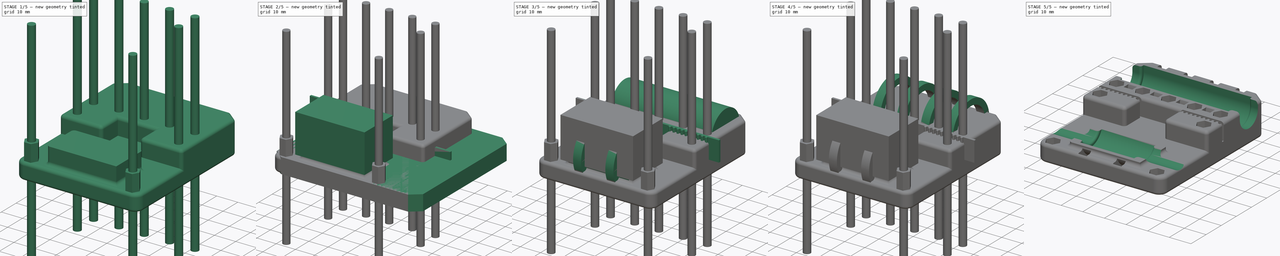
[diagram: build sequence overview — one tinted view per stage of 5, left to right]
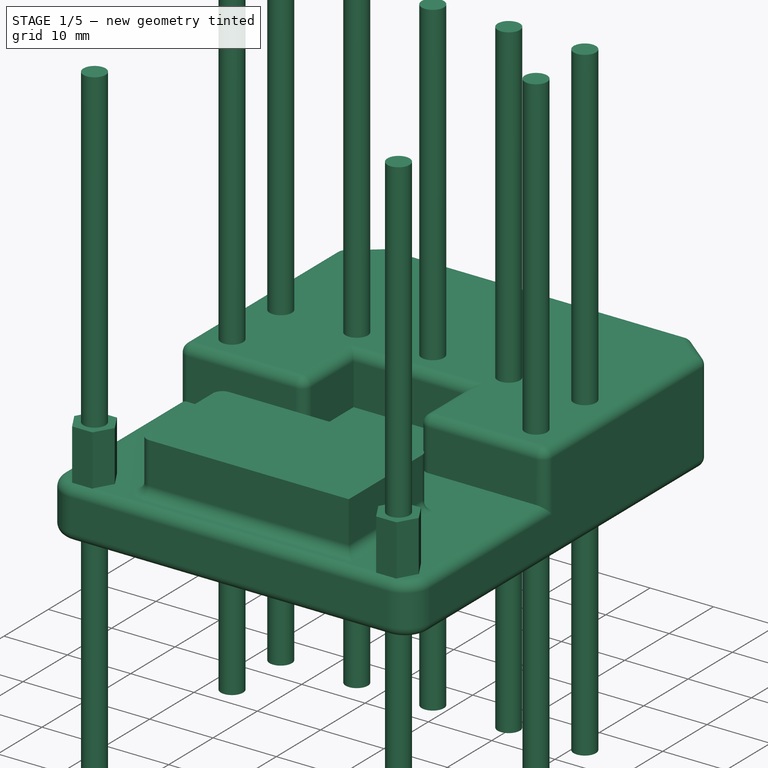
[diagram: stage 1 of 5 — iso view after this stage's code; geometry added in this stage tinted green]
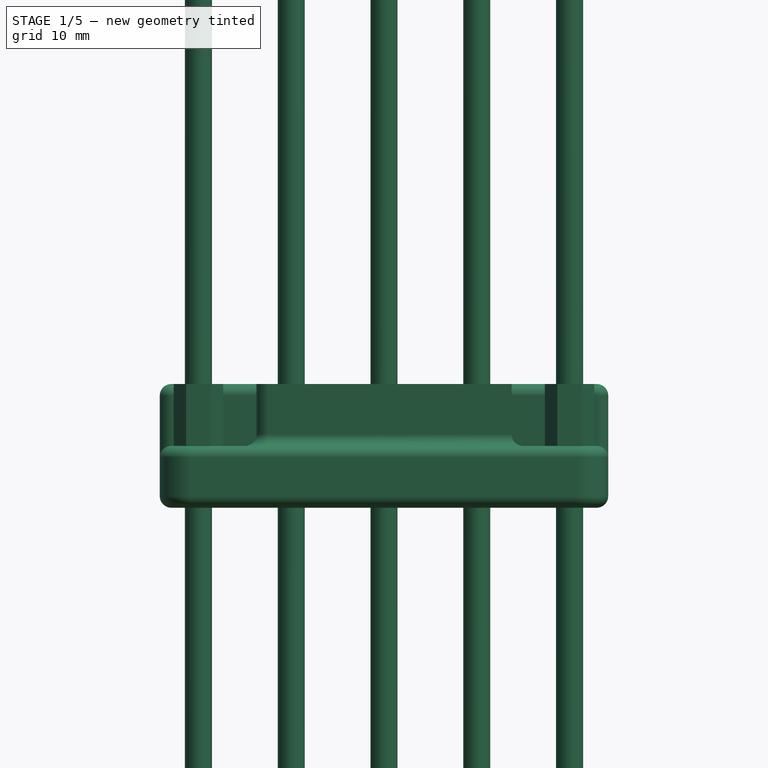
[diagram: stage 1 of 5 — front view after this stage's code; geometry added in this stage tinted green]
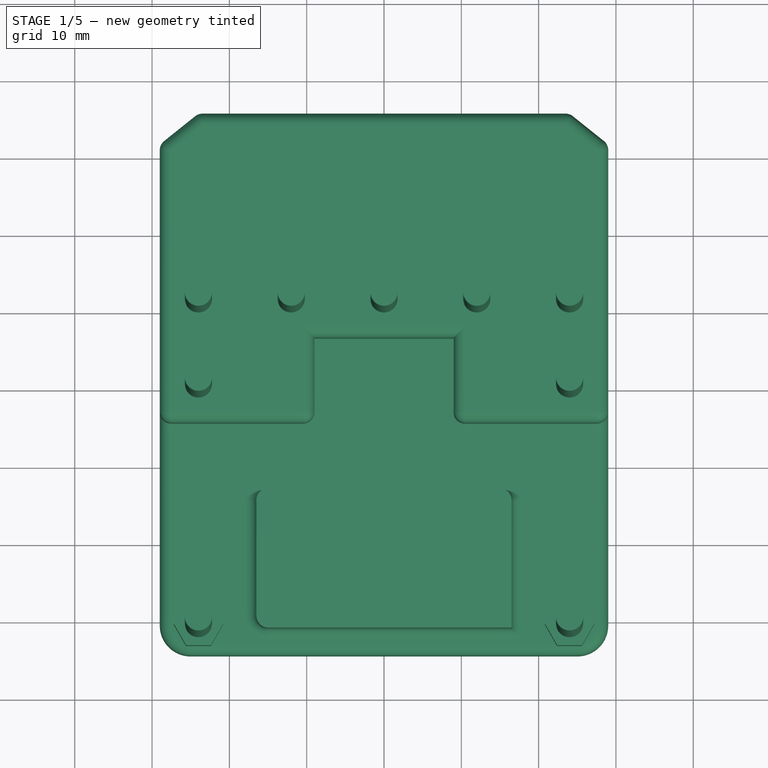
[diagram: stage 1 of 5 — top view after this stage's code; geometry added in this stage tinted green]
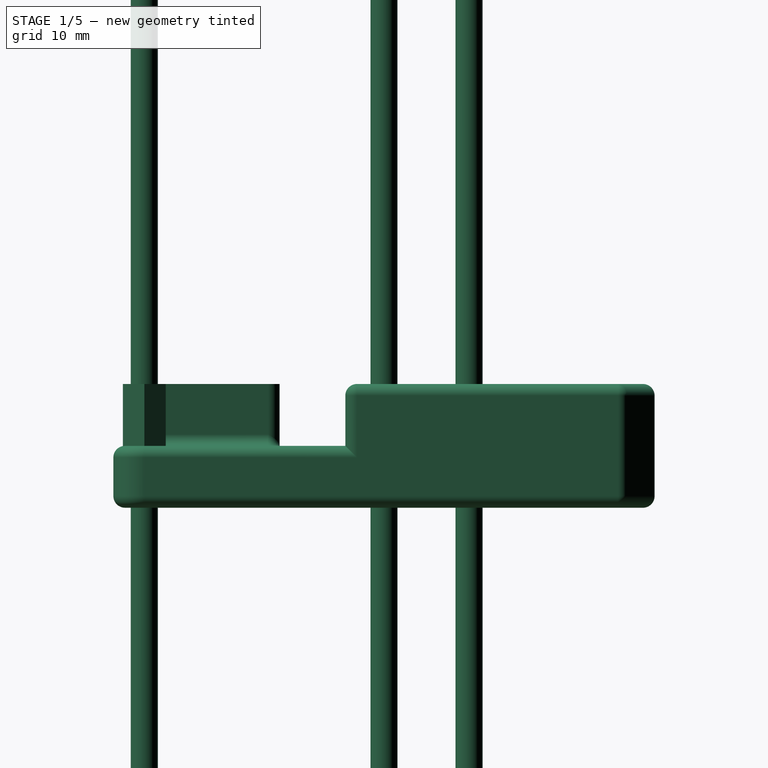
[diagram: stage 1 of 5 — right view after this stage's code; geometry added in this stage tinted green]
FCSTD DOCUMENT  (FreeCAD 0.16R6707 (Git))
Label: carroX_Lale
License: CC-BY 3.0
LicenseURL: http://creativecommons.org/licenses/by/3.0/
objects: Sketcher::SketchObject×9, PartDesign::Pad×9, Part::Cylinder×8, Part::MultiFuse×7, Part::Box×3, Part::Cut×2, Part::FeaturePython×2, PartDesign::Fillet×2
note: 51 computed .brp shape members not serialized (recipe doc carries the construction recipe); baked Part::Feature solids carry a one-line shape summary decoded from their .brp

FEATURE [Sketcher::SketchObject] Sketch
  sketch-geometry (8):
    g0: LineSegment StartX=-24 StartY=35 StartZ=0 EndX=24 EndY=35 EndZ=0
    g1: LineSegment StartX=24 StartY=35 StartZ=0 EndX=29 EndY=31 EndZ=0
    g2: LineSegment StartX=29 StartY=31 StartZ=0 EndX=29 EndY=-31 EndZ=0
    g3: LineSegment StartX=29 StartY=-31 StartZ=0 EndX=24 EndY=-35 EndZ=0
    g4: LineSegment StartX=24 StartY=-35 StartZ=0 EndX=-24 EndY=-35 EndZ=0
    g5: LineSegment StartX=-24 StartY=-35 StartZ=0 EndX=-29 EndY=-31 EndZ=0
    g6: LineSegment StartX=-29 StartY=-31 StartZ=0 EndX=-29 EndY=31 EndZ=0
    g7: LineSegment StartX=-29 StartY=31 StartZ=0 EndX=-24 EndY=35 EndZ=0
  constraints (22):
    c: Coincident(g0,g1)
    c: Coincident(g1,g2)
    c: Vertical(g2)
    c: Coincident(g2,g3)
    c: Coincident(g3,g4)
    c: Horizontal(g4)
    c: Coincident(g4,g5)
    c: Coincident(g5,g6)
    c: Vertical(g6)
    c: Coincident(g6,g7)
    c: Coincident(g7,g0)
    c: Symmetric(g0,g0,g-2)
    c: Symmetric(g5,g2,g-2)
    c: Symmetric(g3,g4,g-2)
    c: Parallel(g3,g7)
    c: Parallel(g5,g1)
    c: DistanceY(g3,g0) = 70
    c: DistanceX(g2,g5) = -58
    c: DistanceX(g0) = 48
    c: Equal(g4,g0)
    c: DistanceY(g6) = 62
    c: Symmetric(g0,g4,g-1)
FEATURE [PartDesign::Pad] Pad
  Length = 8
  Length2 = 100
  Sketch = -> Sketch
  Type = 0
FEATURE [PartDesign::Pad] Pad005  label="tornillos001"
  Length = 100
  Length2 = 100
  Midplane = true
  Placement = pos=(0,0,16) rot=(0,0,1;0rad)
  Sketch = -> Sketch005
  Type = 0
FEATURE [PartDesign::Pad] Pad006  label="tuercas001"
  Length = 11
  Length2 = 100
  Placement = pos=(0,0,16) rot=(0,0,1;0rad)
  Reversed = true
  Sketch = -> Sketch008
  Type = 0
FEATURE [PartDesign::Pad] Pad007  label="huecos_traseros001"
  Length = 3
  Length2 = 100
  Placement = pos=(0,0,0) rot=(1,0,0;3.14159rad)
  Reversed = true
  Sketch = -> Sketch006
  Type = 0
FEATURE [PartDesign::Pad] Pad008  label="principal"
  Length = 8
  Length2 = 100
  Sketch = -> Sketch001
  Type = 0
FEATURE [Sketcher::SketchObject] Sketch009
  ExternalGeometry = -> [Pad008]
  Placement = pos=(0,0,0) rot=(1,0,0;3.14159rad)
  Support = -> Pad008 [Face3]
  sketch-geometry (8):
    g0: LineSegment StartX=-24 StartY=35 StartZ=0 EndX=-25 EndY=35 EndZ=0
    g1: LineSegment StartX=24 StartY=35 StartZ=0 EndX=25 EndY=35 EndZ=0
    g2: ArcOfCircle CenterX=-25 CenterY=31 CenterZ=0 NormalX=0 NormalY=0 NormalZ=1 Radius=3.99999 StartAngle=1.5708 EndAngle=3.1416
    g3: ArcOfCircle CenterX=25 CenterY=31 CenterZ=0 NormalX=0 NormalY=0 NormalZ=1 Radius=4.00003 StartAngle=6.64384e-06 EndAngle=1.5708
    g4: LineSegment StartX=-24 StartY=35 StartZ=0 EndX=-25 EndY=31 EndZ=0
    g5: LineSegment StartX=-25 StartY=31 StartZ=0 EndX=-29 EndY=31 EndZ=0
    g6: LineSegment StartX=24 StartY=35 StartZ=0 EndX=25 EndY=31 EndZ=0
    g7: LineSegment StartX=25 StartY=31 StartZ=0 EndX=29 EndY=31 EndZ=0
  constraints (20):
    c: Coincident(g0,g-3)
    c: Horizontal(g0)
    c: Coincident(g1,g-3)
    c: Horizontal(g1)
    c: Coincident(g2,g-5)
    c: Coincident(g2,g0)
    c: Coincident(g3,g-4)
    c: Coincident(g3,g1)
    c: Tangent(g3,g-4)
    c: Tangent(g3,g1)
    c: Tangent(g2,g-5)
    c: Tangent(g0,g2)
    c: Coincident(g0,g4)
    c: Coincident(g4,g2)
    c: Coincident(g4,g5)
    c: Coincident(g5,g2)
    c: Coincident(g1,g6)
    c: Coincident(g6,g7)
    c: Coincident(g7,g3)
    c: Coincident(g6,g3)
FEATURE [PartDesign::Pad] Pad009
  Length = 8
  Length2 = 100
  Reversed = true
  Sketch = -> Sketch009
  Type = 0
FEATURE [PartDesign::Fillet] Fillet
  Base = -> Pad009 [Edge46,Edge48,Edge52,Edge28,Edge42,Edge7,Edge1,Edge3,Edge9,Edge10,Edge11,Edge12,Edge13,Edge14,Edge15,Edge16,Edge17,Edge6,Edge8,Edge23,Edge21,Edge22,Edge41,Edge35,Edge37,Edge24,Edge36,Edge32,Edge31,Edge4,Edge30,Edge34,Edge39,Edge38,Edge54,Edge44,Edge45]
  Radius = 1.5
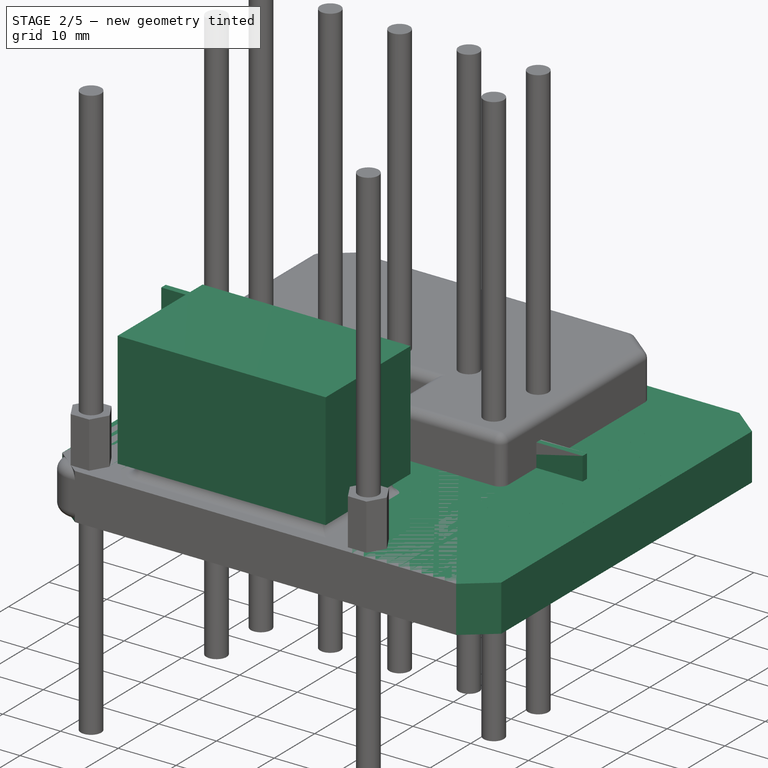
[diagram: stage 2 of 5 — iso view after this stage's code; geometry added in this stage tinted green]
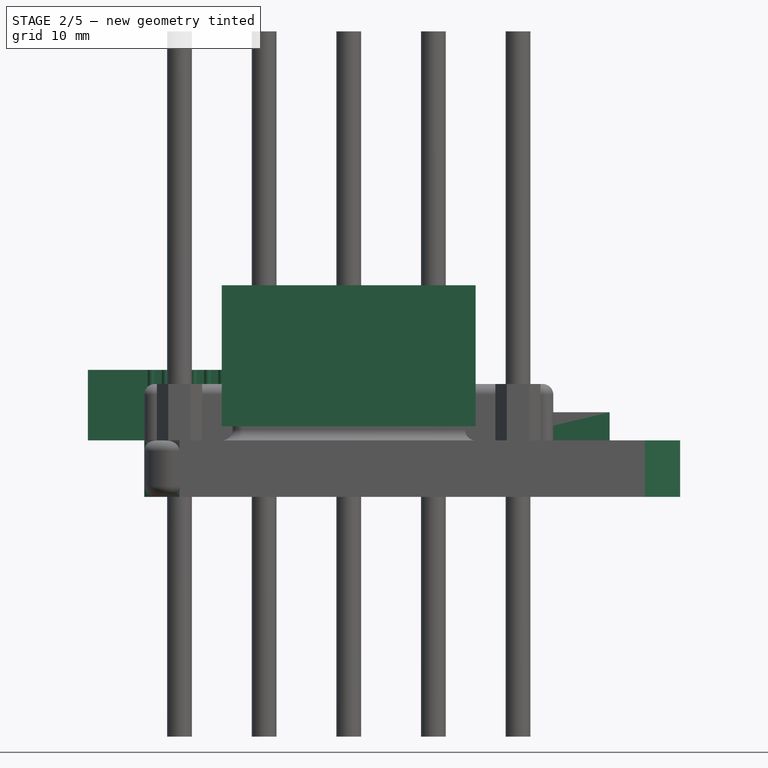
[diagram: stage 2 of 5 — front view after this stage's code; geometry added in this stage tinted green]
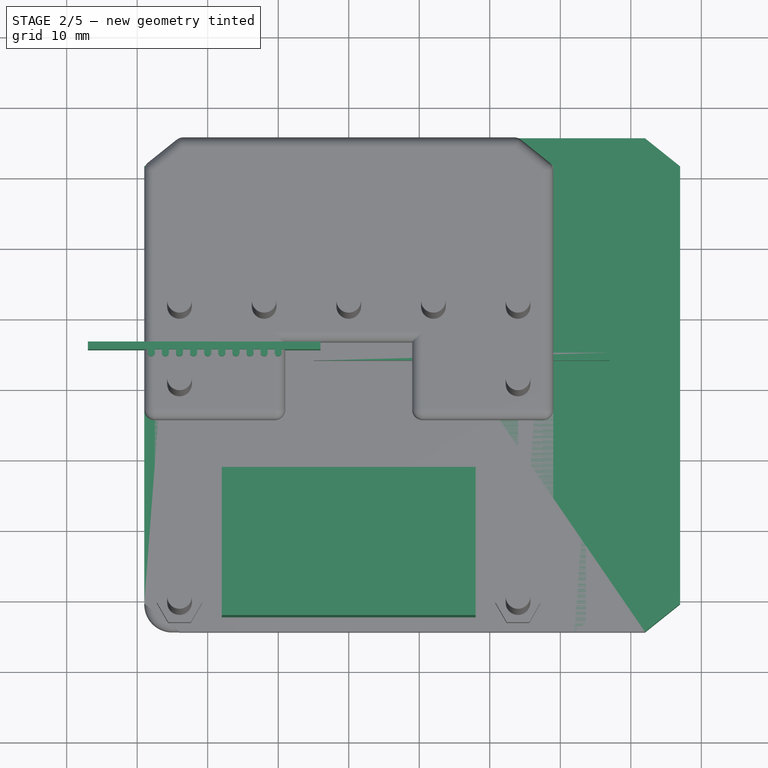
[diagram: stage 2 of 5 — top view after this stage's code; geometry added in this stage tinted green]
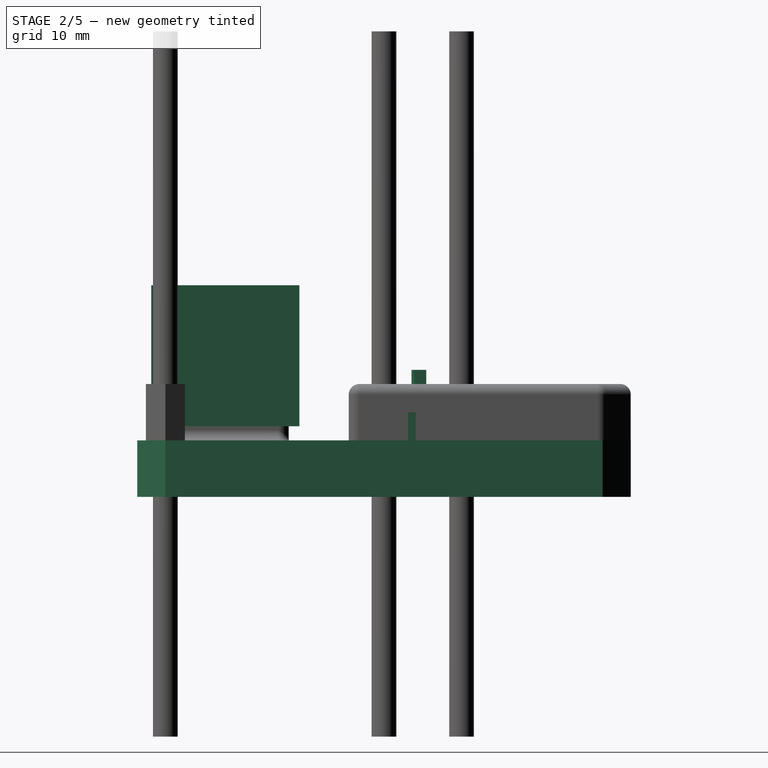
[diagram: stage 2 of 5 — right view after this stage's code; geometry added in this stage tinted green]
FEATURE [Sketcher::SketchObject] Sketch005  label="tornillos"
  Placement = pos=(0,0,16) rot=(0,0,1;0rad)
  sketch-geometry (9):
    g0: Circle CenterX=12 CenterY=11 CenterZ=0 NormalX=0 NormalY=0 NormalZ=1 Radius=1.75
    g1: Circle CenterX=-12 CenterY=11 CenterZ=0 NormalX=0 NormalY=0 NormalZ=1 Radius=1.75
    g2: Circle CenterX=-24 CenterY=-31 CenterZ=0 NormalX=0 NormalY=0 NormalZ=1 Radius=1.75
    g3: Circle CenterX=24 CenterY=-31 CenterZ=0 NormalX=0 NormalY=0 NormalZ=1 Radius=1.75
    g4: Circle CenterX=-24 CenterY=0 CenterZ=0 NormalX=0 NormalY=0 NormalZ=1 Radius=1.75
    g5: Circle CenterX=24 CenterY=0 CenterZ=0 NormalX=0 NormalY=0 NormalZ=1 Radius=1.75
    g6: Circle CenterX=0 CenterY=11 CenterZ=0 NormalX=0 NormalY=0 NormalZ=1 Radius=1.75
    g7: Circle CenterX=-24 CenterY=11 CenterZ=0 NormalX=0 NormalY=0 NormalZ=1 Radius=1.75
    g8: Circle CenterX=24 CenterY=11 CenterZ=0 NormalX=0 NormalY=0 NormalZ=1 Radius=1.75
  constraints (23):
    c: DistanceX(g1,g0) = 24
    c: Symmetric(g1,g0,g-2)
    c: DistanceY(g-1,g1) = 11
    c: Radius(g1) = 1.75
    c: Equal(g1,g0)
    c: Equal(g0,g5)
    c: Equal(g5,g3)
    c: Equal(g3,g2)
    c: Equal(g2,g4)
    c: Symmetric(g4,g5,g-2)
    c: Symmetric(g2,g3,g-2)
    c: DistanceX(g4,g5) = 48
    c: DistanceX(g2,g3) = 48
    c: DistanceY(g-1,g2) = -31
    c: DistanceY(g-1,g4) = 0
    c: PointOnObject(g6,g-2)
    c: DistanceY(g-1,g6) = 11
    c: Symmetric(g7,g8,g-2)
    c: Equal(g7,g1)
    c: Equal(g1,g6)
    c: Equal(g6,g8)
    c: DistanceX(g7,g6) = 24
    c: DistanceY(g-1,g7) = 11
FEATURE [Sketcher::SketchObject] Sketch006  label="huecos_traseros"
  Placement = pos=(0,0,0) rot=(1,0,0;3.14159rad)
  sketch-geometry (24):
    g0: LineSegment StartX=-10 StartY=27 StartZ=0 EndX=-6 EndY=27 EndZ=0
    g1: LineSegment StartX=-6 StartY=27 StartZ=0 EndX=-6 EndY=18 EndZ=0
    g2: LineSegment StartX=-6 StartY=18 StartZ=0 EndX=-10 EndY=18 EndZ=0
    g3: LineSegment StartX=-10 StartY=18 StartZ=0 EndX=-10 EndY=27 EndZ=0
    g4: LineSegment StartX=6 StartY=27 StartZ=0 EndX=10 EndY=27 EndZ=0
    g5: LineSegment StartX=10 StartY=27 StartZ=0 EndX=10 EndY=18 EndZ=0
    g6: LineSegment StartX=10 StartY=18 StartZ=0 EndX=6 EndY=18 EndZ=0
    g7: LineSegment StartX=6 StartY=18 StartZ=0 EndX=6 EndY=27 EndZ=0
    g8: LineSegment StartX=-20 StartY=-18 StartZ=0 EndX=-16 EndY=-18 EndZ=0
    g9: LineSegment StartX=-16 StartY=-18 StartZ=0 EndX=-16 EndY=-27 EndZ=0
    g10: LineSegment StartX=-16 StartY=-27 StartZ=0 EndX=-20 EndY=-27 EndZ=0
    g11: LineSegment StartX=-20 StartY=-27 StartZ=0 EndX=-20 EndY=-18 EndZ=0
    g12: LineSegment StartX=-8 StartY=-18 StartZ=0 EndX=-4 EndY=-18 EndZ=0
    g13: LineSegment StartX=-4 StartY=-18 StartZ=0 EndX=-4 EndY=-27 EndZ=0
    g14: LineSegment StartX=-4 StartY=-27 StartZ=0 EndX=-8 EndY=-27 EndZ=0
    g15: LineSegment StartX=-8 StartY=-27 StartZ=0 EndX=-8 EndY=-18 EndZ=0
    g16: LineSegment StartX=4 StartY=-18 StartZ=0 EndX=8 EndY=-18 EndZ=0
    g17: LineSegment StartX=8 StartY=-18 StartZ=0 EndX=8 EndY=-27 EndZ=0
    g18: LineSegment StartX=8 StartY=-27 StartZ=0 EndX=4 EndY=-27 EndZ=0
    g19: LineSegment StartX=4 StartY=-27 StartZ=0 EndX=4 EndY=-18 EndZ=0
    g20: LineSegment StartX=16 StartY=-18 StartZ=0 EndX=20 EndY=-18 EndZ=0
    g21: LineSegment StartX=20 StartY=-18 StartZ=0 EndX=20 EndY=-27 EndZ=0
    g22: LineSegment StartX=20 StartY=-27 StartZ=0 EndX=16 EndY=-27 EndZ=0
    g23: LineSegment StartX=16 StartY=-27 StartZ=0 EndX=16 EndY=-18 EndZ=0
  constraints (69):
    c: Coincident(g0,g1)
    c: Coincident(g1,g2)
    c: Coincident(g2,g3)
    c: Coincident(g3,g0)
    c: Horizontal(g0)
    c: Horizontal(g2)
    c: Vertical(g1)
    c: Vertical(g3)
    c: DistanceY(g1) = -9
    c: Coincident(g4,g5)
    c: Coincident(g5,g6)
    c: Coincident(g6,g7)
    c: Coincident(g7,g4)
    c: Horizontal(g4)
    c: Horizontal(g6)
    c: Vertical(g5)
    c: Vertical(g7)
    c: Coincident(g8,g9)
    c: Coincident(g9,g10)
    c: Coincident(g10,g11)
    c: Coincident(g11,g8)
    c: Horizontal(g8)
    c: Horizontal(g10)
    c: Vertical(g9)
    c: Vertical(g11)
    c: Coincident(g12,g13)
    c: Coincident(g13,g14)
    c: Coincident(g14,g15)
    c: Coincident(g15,g12)
    c: Horizontal(g12)
    c: Horizontal(g14)
    c: Vertical(g13)
    c: Vertical(g15)
    c: Coincident(g16,g17)
    c: Coincident(g17,g18)
    c: Coincident(g18,g19)
    c: Coincident(g19,g16)
    c: Horizontal(g16)
    c: Horizontal(g18)
    c: Vertical(g17)
    c: Vertical(g19)
    c: Coincident(g20,g21)
    c: Coincident(g21,g22)
    c: Coincident(g22,g23)
    c: Coincident(g23,g20)
    c: Horizontal(g20)
    c: Horizontal(g22)
    c: Vertical(g21)
    c: Vertical(g23)
    c: DistanceX(g0) = 4
    c: Symmetric(g0,g4,g-2)
    c: DistanceX(g0,g4) = 12
    c: Equal(g0,g4)
    c: Equal(g4,g8)
    c: Equal(g8,g12)
    c: Equal(g12,g16)
    c: Equal(g16,g20)
    c: Equal(g1,g5)
    c: Equal(g5,g9)
    c: Equal(g9,g13)
    c: Equal(g13,g17)
    c: Equal(g17,g21)
    c: DistanceY(g-1,g1) = 18
    c: Symmetric(g8,g20,g-2)
    c: Symmetric(g14,g17,g-2)
    c: DistanceX(g8,g20) = 32
    c: DistanceX(g12,g16) = 8
    c: DistanceY(g-1,g8) = -18
    c: DistanceY(g-1,g16) = -18
FEATURE [Sketcher::SketchObject] Sketch008  label="tuercas"
  Placement = pos=(0,0,16) rot=(0,0,1;0rad)
  sketch-geometry (63):
    g0: Circle [constr] CenterX=-12 CenterY=11 CenterZ=0 NormalX=0 NormalY=0 NormalZ=1 Radius=3.2
    g1: Circle [constr] CenterX=12 CenterY=11 CenterZ=0 NormalX=0 NormalY=0 NormalZ=1 Radius=3.2
    g2: LineSegment StartX=-13.6492 StartY=13.7423 StartZ=0 EndX=-10.4498 EndY=13.7994 EndZ=0
    g3: LineSegment StartX=-10.4498 StartY=13.7994 StartZ=0 EndX=-8.80051 EndY=11.0572 EndZ=0
    g4: LineSegment StartX=-8.80051 StartY=11.0572 StartZ=0 EndX=-10.3508 EndY=8.25774 EndZ=0
    g5: LineSegment StartX=-10.3508 StartY=8.25774 StartZ=0 EndX=-13.5502 EndY=8.20058 EndZ=0
    g6: LineSegment StartX=-13.5502 StartY=8.20058 StartZ=0 EndX=-15.1995 EndY=10.9428 EndZ=0
    g7: LineSegment StartX=-15.1995 StartY=10.9428 StartZ=0 EndX=-13.6492 EndY=13.7423 EndZ=0
    g8: LineSegment StartX=10.4 StartY=13.7713 StartZ=0 EndX=13.6 EndY=13.7713 EndZ=0
    g9: LineSegment StartX=13.6 StartY=13.7713 StartZ=0 EndX=15.2 EndY=11 EndZ=0
    g10: LineSegment StartX=15.2 StartY=11 StartZ=0 EndX=13.6 EndY=8.22872 EndZ=0
    g11: LineSegment StartX=13.6 StartY=8.22872 StartZ=0 EndX=10.4 EndY=8.22872 EndZ=0
    g12: LineSegment StartX=10.4 StartY=8.22872 StartZ=0 EndX=8.8 EndY=11 EndZ=0
    g13: LineSegment StartX=8.8 StartY=11 StartZ=0 EndX=10.4 EndY=13.7713 EndZ=0
    g14: Circle [constr] CenterX=-24 CenterY=0 CenterZ=0 NormalX=0 NormalY=0 NormalZ=1 Radius=3.2
    g15: Circle [constr] CenterX=24 CenterY=0 CenterZ=0 NormalX=0 NormalY=0 NormalZ=1 Radius=3.2
    g16: LineSegment StartX=-25.6 StartY=2.77128 StartZ=0 EndX=-22.4 EndY=2.77128 EndZ=0
    g17: LineSegment StartX=-22.4 StartY=2.77128 StartZ=0 EndX=-20.8 EndY=0 EndZ=0
    g18: LineSegment StartX=-20.8 StartY=0 StartZ=0 EndX=-22.4 EndY=-2.77128 EndZ=0
    g19: LineSegment StartX=-22.4 StartY=-2.77128 StartZ=0 EndX=-25.6 EndY=-2.77128 EndZ=0
    g20: LineSegment StartX=-25.6 StartY=-2.77128 StartZ=0 EndX=-27.2 EndY=0 EndZ=0
    g21: LineSegment StartX=-27.2 StartY=0 StartZ=0 EndX=-25.6 EndY=2.77128 EndZ=0
    g22: LineSegment StartX=22.4 StartY=2.77128 StartZ=0 EndX=25.6 EndY=2.77128 EndZ=0
    g23: LineSegment StartX=25.6 StartY=2.77128 StartZ=0 EndX=27.2 EndY=0 EndZ=0
    g24: LineSegment StartX=27.2 StartY=0 StartZ=0 EndX=25.6 EndY=-2.77128 EndZ=0
    g25: LineSegment StartX=25.6 StartY=-2.77128 StartZ=0 EndX=22.4 EndY=-2.77128 EndZ=0
    g26: LineSegment StartX=22.4 StartY=-2.77128 StartZ=0 EndX=20.8 EndY=0 EndZ=0
    g27: LineSegment StartX=20.8 StartY=0 StartZ=0 EndX=22.4 EndY=2.77128 EndZ=0
    g28: Circle [constr] CenterX=-24 CenterY=-31 CenterZ=0 NormalX=0 NormalY=0 NormalZ=1 Radius=3.2
    g29: Circle [constr] CenterX=24 CenterY=-31 CenterZ=0 NormalX=0 NormalY=0 NormalZ=1 Radius=3.2
    g30: LineSegment StartX=-25.6 StartY=-28.2287 StartZ=0 EndX=-22.4 EndY=-28.2287 EndZ=0
    g31: LineSegment StartX=-22.4 StartY=-28.2287 StartZ=0 EndX=-20.8 EndY=-31 EndZ=0
    g32: LineSegment StartX=-20.8 StartY=-31 StartZ=0 EndX=-22.4 EndY=-33.7713 EndZ=0
    g33: LineSegment StartX=-22.4 StartY=-33.7713 StartZ=0 EndX=-25.6 EndY=-33.7713 EndZ=0
    g34: LineSegment StartX=-25.6 StartY=-33.7713 StartZ=0 EndX=-27.2 EndY=-31 EndZ=0
    g35: LineSegment StartX=-27.2 StartY=-31 StartZ=0 EndX=-25.6 EndY=-28.2287 EndZ=0
    g36: LineSegment StartX=22.4 StartY=-28.2287 StartZ=0 EndX=25.6 EndY=-28.2287 EndZ=0
    g37: LineSegment StartX=25.6 StartY=-28.2287 StartZ=0 EndX=27.2 EndY=-31 EndZ=0
    g38: LineSegment StartX=27.2 StartY=-31 StartZ=0 EndX=25.6 EndY=-33.7713 EndZ=0
    g39: LineSegment StartX=25.6 StartY=-33.7713 StartZ=0 EndX=22.4 EndY=-33.7713 EndZ=0
    g40: LineSegment StartX=22.4 StartY=-33.7713 StartZ=0 EndX=20.8 EndY=-31 EndZ=0
    g41: LineSegment StartX=20.8 StartY=-31 StartZ=0 EndX=22.4 EndY=-28.2287 EndZ=0
    g42: Circle [constr] CenterX=0 CenterY=11 CenterZ=0 NormalX=0 NormalY=0 NormalZ=1 Radius=3.2
    g43: Circle [constr] CenterX=-24 CenterY=11 CenterZ=0 NormalX=0 NormalY=0 NormalZ=1 Radius=3.2
    g44: Circle [constr] CenterX=24 CenterY=11 CenterZ=0 NormalX=0 NormalY=0 NormalZ=1 Radius=3.2
    g45: LineSegment StartX=-1.6 StartY=13.7713 StartZ=0 EndX=1.6 EndY=13.7713 EndZ=0
    g46: LineSegment StartX=1.6 StartY=13.7713 StartZ=0 EndX=3.2 EndY=11 EndZ=0
    g47: LineSegment StartX=3.2 StartY=11 StartZ=0 EndX=1.6 EndY=8.22872 EndZ=0
    g48: LineSegment StartX=1.6 StartY=8.22872 StartZ=0 EndX=-1.6 EndY=8.22872 EndZ=0
    g49: LineSegment StartX=-1.6 StartY=8.22872 StartZ=0 EndX=-3.2 EndY=11 EndZ=0
    g50: LineSegment StartX=-3.2 StartY=11 StartZ=0 EndX=-1.6 EndY=13.7713 EndZ=0
    g51: LineSegment StartX=-25.6 StartY=13.7713 StartZ=0 EndX=-22.4 EndY=13.7713 EndZ=0
    g52: LineSegment StartX=-22.4 StartY=13.7713 StartZ=0 EndX=-20.8 EndY=11 EndZ=0
    g53: LineSegment StartX=-20.8 StartY=11 StartZ=0 EndX=-22.4 EndY=8.22872 EndZ=0
    g54: LineSegment StartX=-22.4 StartY=8.22872 StartZ=0 EndX=-25.6 EndY=8.22872 EndZ=0
    g55: LineSegment StartX=-25.6 StartY=8.22872 StartZ=0 EndX=-27.2 EndY=11 EndZ=0
    g56: LineSegment StartX=-27.2 StartY=11 StartZ=0 EndX=-25.6 EndY=13.7713 EndZ=0
    g57: LineSegment StartX=22.4 StartY=13.7713 StartZ=0 EndX=25.6 EndY=13.7713 EndZ=0
    g58: LineSegment StartX=25.6 StartY=13.7713 StartZ=0 EndX=27.2 EndY=11 EndZ=0
    g59: LineSegment StartX=27.2 StartY=11 StartZ=0 EndX=25.6 EndY=8.22872 EndZ=0
    g60: LineSegment StartX=25.6 StartY=8.22872 StartZ=0 EndX=22.4 EndY=8.22872 EndZ=0
    g61: LineSegment StartX=22.4 StartY=8.22872 StartZ=0 EndX=20.8 EndY=11 EndZ=0
    g62: LineSegment StartX=20.8 StartY=11 StartZ=0 EndX=22.4 EndY=13.7713 EndZ=0
  constraints (185):
    c: Equal(g1,g0)
    c: Radius(g1) = 3.2
    c: PointOnObject(g2,g0)
    c: PointOnObject(g2,g0)
    c: Tangent(g2,g1)
    c: Coincident(g2,g3)
    c: Coincident(g3,g4)
    c: Coincident(g4,g5)
    c: Coincident(g5,g6)
    c: Coincident(g6,g7)
    c: Equal(g6,g5)
    c: Equal(g5,g4)
    c: Equal(g4,g3)
    c: Equal(g3,g2)
    c: Equal(g2,g7)
    c: Coincident(g7,g2)
    c: PointOnObject(g4,g0)
    c: PointOnObject(g6,g0)
    c: PointOnObject(g5,g0)
    c: PointOnObject(g3,g0)
    c: Coincident(g8,g9)
    c: Coincident(g9,g10)
    c: Coincident(g10,g11)
    c: Coincident(g11,g12)
    c: Coincident(g12,g13)
    c: Coincident(g13,g8)
    c: Equal(g13,g8)
    c: Equal(g8,g9)
    c: Equal(g9,g10)
    c: Equal(g10,g11)
    c: Equal(g11,g12)
    c: Horizontal(g8)
    c: PointOnObject(g8,g1)
    c: PointOnObject(g8,g1)
    c: PointOnObject(g11,g1)
    c: PointOnObject(g12,g1)
    c: PointOnObject(g10,g1)
    c: PointOnObject(g9,g1)
    c: Symmetric(g14,g15,g-2)
    c: DistanceX(g14,g15) = 48
    c: DistanceY(g-1,g14) = 0
    c: Equal(g15,g1)
    c: Coincident(g16,g17)
    c: Coincident(g17,g18)
    c: Coincident(g18,g19)
    c: Coincident(g19,g20)
    c: Coincident(g20,g21)
    c: Coincident(g21,g16)
    c: Horizontal(g16)
    c: Horizontal(g19)
    c: PointOnObject(g16,g14)
    c: PointOnObject(g16,g14)
    c: Equal(g20,g21)
    c: Equal(g21,g16)
    c: Equal(g16,g17)
    c: Equal(g17,g18)
    c: Equal(g18,g19)
    c: PointOnObject(g18,g14)
    c: PointOnObject(g19,g14)
    c: PointOnObject(g20,g14)
    c: Symmetric(g0,g1,g-2)
    c: DistanceX(g0,g1) = 24
    c: DistanceY(g-1,g0) = 11
    c: Coincident(g22,g23)
    c: Coincident(g23,g24)
    c: Coincident(g24,g25)
    c: Coincident(g25,g26)
    c: Coincident(g26,g27)
    c: Coincident(g27,g22)
    c: Horizontal(g22)
    c: Horizontal(g25)
    c: PointOnObject(g22,g15)
    c: PointOnObject(g22,g15)
    c: PointOnObject(g24,g15)
    c: PointOnObject(g25,g15)
    c: Equal(g25,g24)
    c: Equal(g24,g23)
    c: Equal(g23,g22)
    c: Equal(g22,g27)
    c: Equal(g27,g26)
    c: PointOnObject(g26,g15)
    c: Symmetric(g28,g29,g-2)
    c: DistanceX(g28,g29) = 48
    c: Equal(g0,g14)
    c: Equal(g15,g29)
    c: Equal(g29,g28)
    c: DistanceY(g-1,g28) = -31
    c: Coincident(g30,g31)
    c: Coincident(g31,g32)
    c: Coincident(g32,g33)
    c: Coincident(g33,g34)
    c: Coincident(g34,g35)
    c: Coincident(g35,g30)
    c: Horizontal(g30)
    c: Horizontal(g33)
    c: PointOnObject(g30,g28)
    c: PointOnObject(g30,g28)
    c: PointOnObject(g32,g28)
    c: PointOnObject(g33,g28)
    c: Equal(g33,g34)
    c: Equal(g34,g35)
    c: Equal(g35,g30)
    c: Equal(g30,g31)
    c: Equal(g31,g32)
    c: PointOnObject(g34,g28)
    c: Coincident(g36,g37)
    c: Coincident(g37,g38)
    c: Coincident(g38,g39)
    c: Coincident(g39,g40)
    c: Coincident(g40,g41)
    c: Coincident(g41,g36)
    c: Horizontal(g36)
    c: Horizontal(g39)
    c: PointOnObject(g36,g29)
    c: PointOnObject(g36,g29)
    c: PointOnObject(g38,g29)
    c: PointOnObject(g39,g29)
    c: Equal(g39,g40)
    c: Equal(g40,g41)
    c: Equal(g41,g36)
    c: Equal(g36,g37)
    c: Equal(g37,g38)
    c: PointOnObject(g40,g29)
    c: Symmetric(g43,g44,g42)
    c: PointOnObject(g42,g-2)
    c: Equal(g42,g43)
    c: Equal(g43,g44)
    c: Equal(g44,g1)
    c: DistanceY(g-1,g42) = 11
    c: Coincident(g45,g46)
    c: Coincident(g46,g47)
    c: Coincident(g47,g48)
    c: Coincident(g48,g49)
    c: Coincident(g49,g50)
    c: Coincident(g50,g45)
    c: Horizontal(g45)
    c: Horizontal(g48)
    c: PointOnObject(g45,g42)
    c: PointOnObject(g45,g42)
    c: PointOnObject(g47,g42)
    c: PointOnObject(g48,g42)
    c: PointOnObject(g49,g42)
    c: Equal(g49,g48)
    c: Equal(g48,g47)
    c: Equal(g47,g46)
    c: Equal(g46,g45)
    c: Equal(g45,g50)
    c: DistanceX(g43,g42) = 24
    c: DistanceY(g-1,g43) = 11
    c: Coincident(g51,g52)
    c: Coincident(g52,g53)
    c: Coincident(g53,g54)
    c: Coincident(g54,g55)
    c: Coincident(g55,g56)
    c: Coincident(g56,g51)
    c: Horizontal(g51)
    c: Horizontal(g54)
    c: PointOnObject(g51,g43)
    c: PointOnObject(g51,g43)
    c: PointOnObject(g53,g43)
    c: PointOnObject(g54,g43)
    c: PointOnObject(g55,g43)
    c: Equal(g54,g53)
    c: Equal(g53,g52)
    c: Equal(g52,g51)
    c: Equal(g51,g56)
    c: Equal(g56,g55)
    c: Coincident(g57,g58)
    c: Coincident(g58,g59)
    c: Coincident(g59,g60)
    c: Coincident(g60,g61)
    c: Coincident(g61,g62)
    c: Coincident(g62,g57)
    c: Horizontal(g57)
    c: Horizontal(g60)
    c: PointOnObject(g57,g44)
    c: PointOnObject(g57,g44)
    c: PointOnObject(g60,g44)
    c: PointOnObject(g59,g44)
    c: PointOnObject(g61,g44)
    c: Equal(g60,g61)
    c: Equal(g61,g62)
    c: Equal(g62,g57)
    c: Equal(g57,g58)
    c: Equal(g58,g59)
FEATURE [Part::Box] Box  label="Cubo001"
  Height = 10
  Length = 42
  Placement = pos=(-5,3.4,2) rot=(0,0,1;0rad)
  Width = 1.1
FEATURE [Part::FeaturePython] Array  # Draft array (typed FeaturePython)
  Angle = 360
  ArrayType = 0
  Axis = (0,0,1)
  Base = -> Pad
  Center = (0,0,0)
  IntervalX = (2,0,0)
  IntervalY = (0,1,0)
  IntervalZ = (0,0,1)
  NumberPolar = 1
  NumberX = 10
  NumberY = 1
  NumberZ = 1
FEATURE [Part::Box] Box001  label="Cubo002"
  Height = 10
  Length = 33
  Placement = pos=(-5,3.4,2) rot=(0,0,1;0rad)
  Width = 1.1
FEATURE [Part::FeaturePython] Array001  # Draft array (typed FeaturePython)
  Angle = 360
  ArrayType = 0
  Axis = (0,0,1)
  Base = -> Pad
  Center = (0,0,0)
  IntervalX = (2,0,0)
  IntervalY = (0,1,0)
  IntervalZ = (0,0,1)
  NumberPolar = 1
  NumberX = 10
  NumberY = 1
  NumberZ = 1
FEATURE [Part::MultiFuse] Fusion004  label="correa001"
  Placement = pos=(-9,9.4,6) rot=(0,0,1;3.14159rad)
  Shapes = -> [Array001,Box001]
FEATURE [Part::Box] Box002  label="rebaje rodamiento"
  Height = 20
  Length = 36
  Placement = pos=(-18,-33,10) rot=(0,0,1;0rad)
  Width = 21
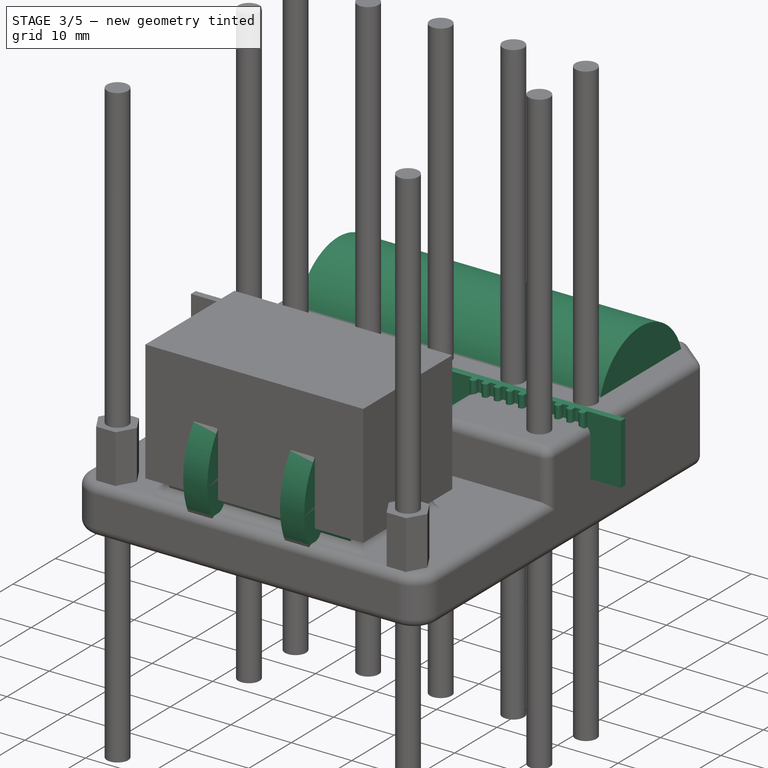
[diagram: stage 3 of 5 — iso view after this stage's code; geometry added in this stage tinted green]
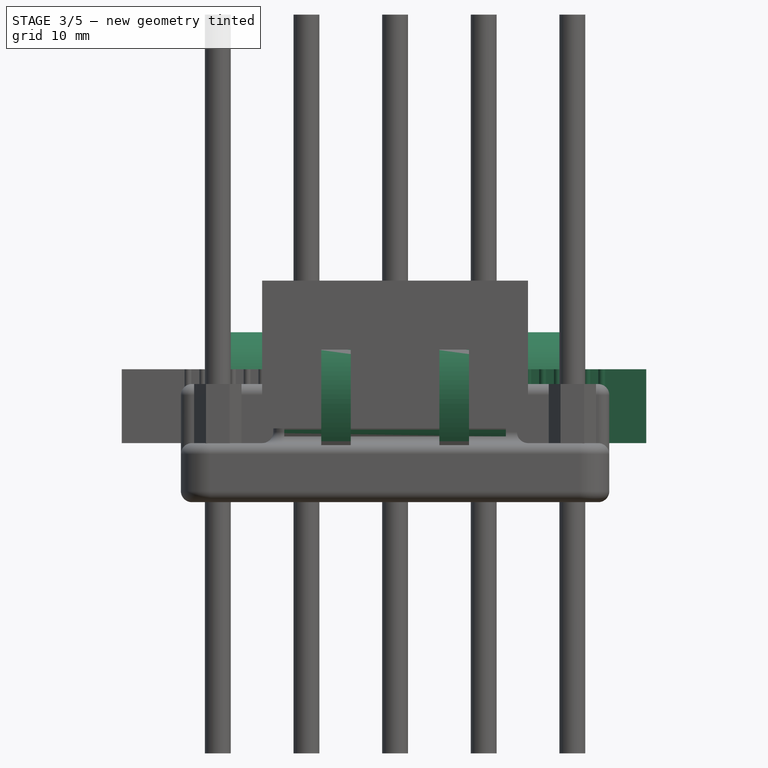
[diagram: stage 3 of 5 — front view after this stage's code; geometry added in this stage tinted green]
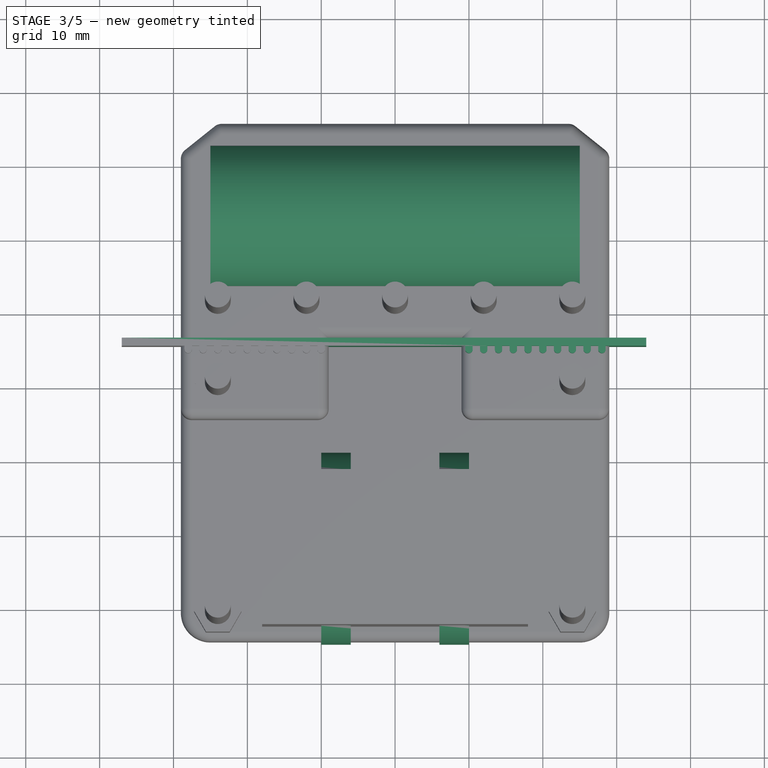
[diagram: stage 3 of 5 — top view after this stage's code; geometry added in this stage tinted green]
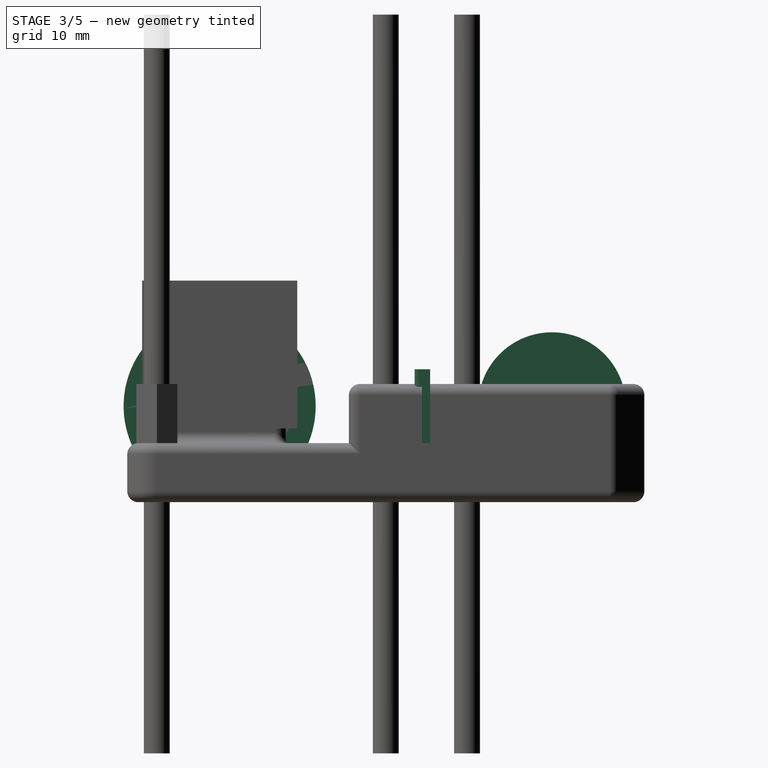
[diagram: stage 3 of 5 — right view after this stage's code; geometry added in this stage tinted green]
FEATURE [Part::Cylinder] Cylinder004  label="brida004"
  Angle = 360
  Height = 4
  Placement = pos=(6,-22.5,13) rot=(0,1,0;1.5708rad)
  Radius = 13
FEATURE [Part::Cylinder] Cylinder005  label="brida005"
  Angle = 360
  Height = 4
  Placement = pos=(-10,-22.5,13) rot=(0,1,0;1.5708rad)
  Radius = 13
FEATURE [Part::Cylinder] Cylinder006  label="hueco_4bridas"
  Angle = 360
  Height = 50
  Placement = pos=(-25,22.5,13) rot=(0,1,0;1.5708rad)
  Radius = 10
FEATURE [Part::Cylinder] Cylinder007  label="hueco_2bridas"
  Angle = 360
  Height = 30
  Placement = pos=(-15,-22.5,13) rot=(0,1,0;1.5708rad)
  Radius = 10
FEATURE [Part::MultiFuse] Fusion002  label="resta_bridas"
  Shapes = -> [Cylinder007,Cylinder006]
FEATURE [Part::MultiFuse] Fusion003  label="correa"
  Placement = pos=(29,9.4,6) rot=(0,0,1;3.14159rad)
  Shapes = -> [Array,Box]
FEATURE [Part::MultiFuse] Fusion005  label="correa002"
  Shapes = -> [Fusion004,Fusion003]
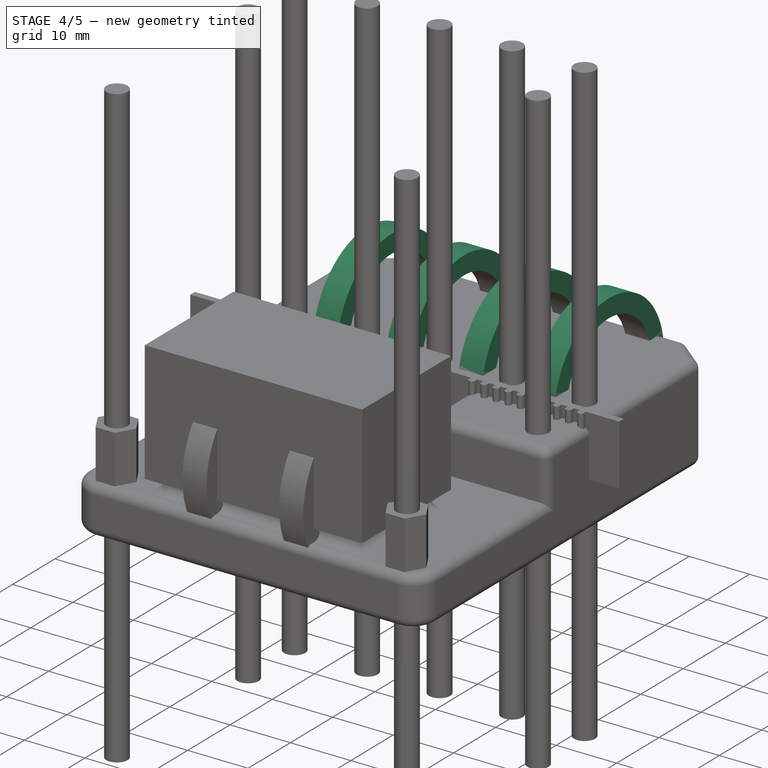
[diagram: stage 4 of 5 — iso view after this stage's code; geometry added in this stage tinted green]
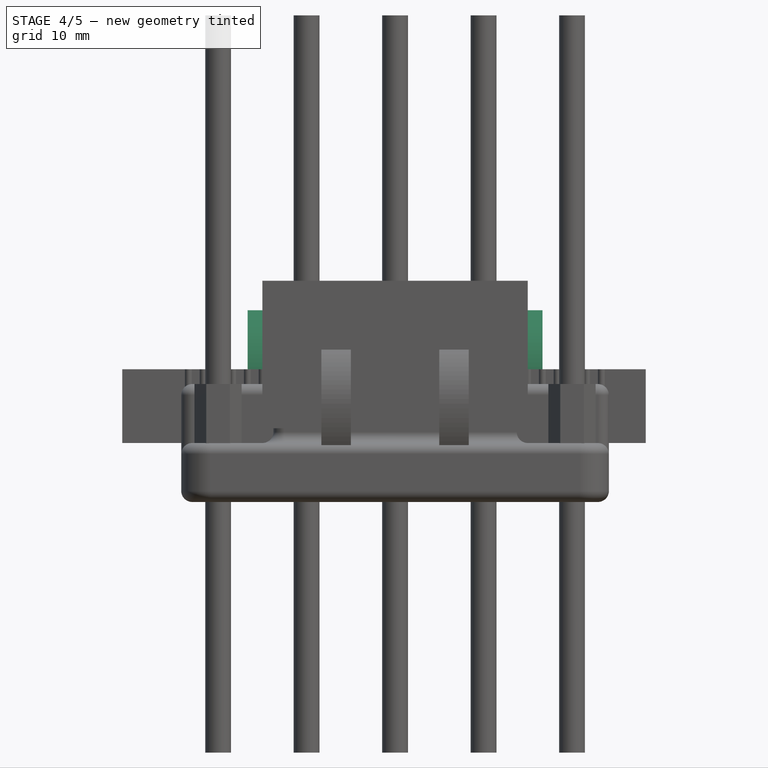
[diagram: stage 4 of 5 — front view after this stage's code; geometry added in this stage tinted green]
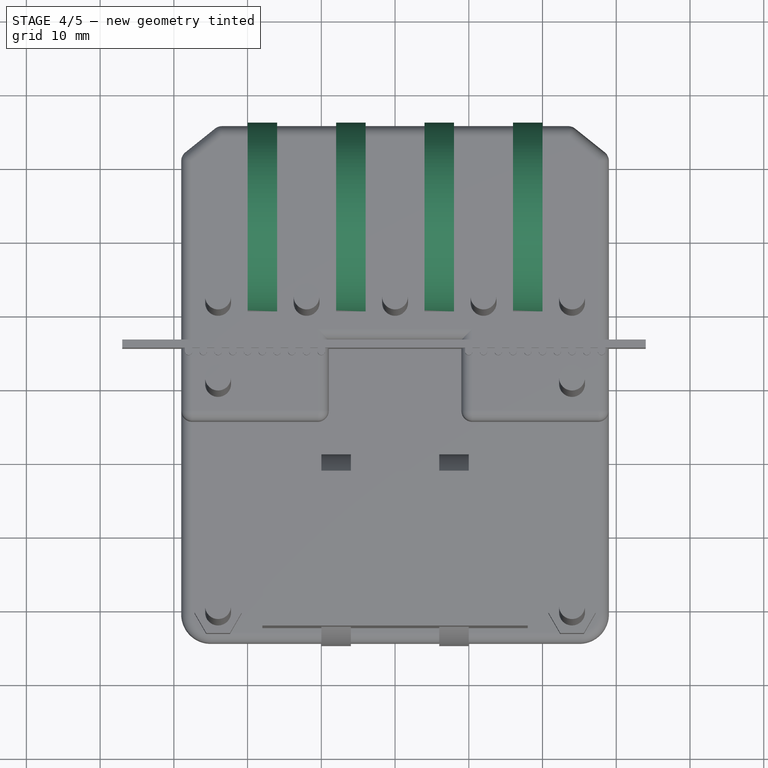
[diagram: stage 4 of 5 — top view after this stage's code; geometry added in this stage tinted green]
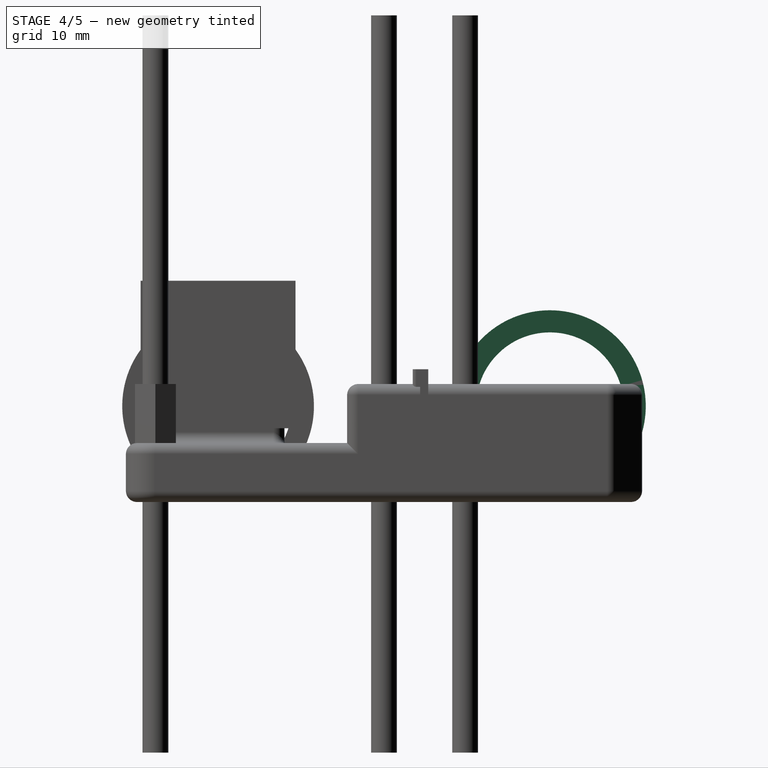
[diagram: stage 4 of 5 — right view after this stage's code; geometry added in this stage tinted green]
FEATURE [Part::Cylinder] Cylinder  label="brida"
  Angle = 360
  Height = 4
  Placement = pos=(4,22.5,13) rot=(0,1,0;1.5708rad)
  Radius = 13
FEATURE [Part::Cylinder] Cylinder001  label="brida001"
  Angle = 360
  Height = 4
  Placement = pos=(16,22.5,13) rot=(0,1,0;1.5708rad)
  Radius = 13
FEATURE [Part::Cylinder] Cylinder002  label="brida002"
  Angle = 360
  Height = 4
  Placement = pos=(-8,22.5,13) rot=(0,1,0;1.5708rad)
  Radius = 13
FEATURE [Part::Cylinder] Cylinder003  label="brida003"
  Angle = 360
  Height = 4
  Placement = pos=(-20,22.5,13) rot=(0,1,0;1.5708rad)
  Radius = 13
FEATURE [Part::MultiFuse] Fusion001  label="bridas_bruto"
  Shapes = -> [Cylinder004,Cylinder005,Cylinder,Cylinder001,Cylinder002,Cylinder003]
FEATURE [Part::Cut] Cut002  label="bridas"
  Base = -> Fusion001
  Tool = -> Fusion002
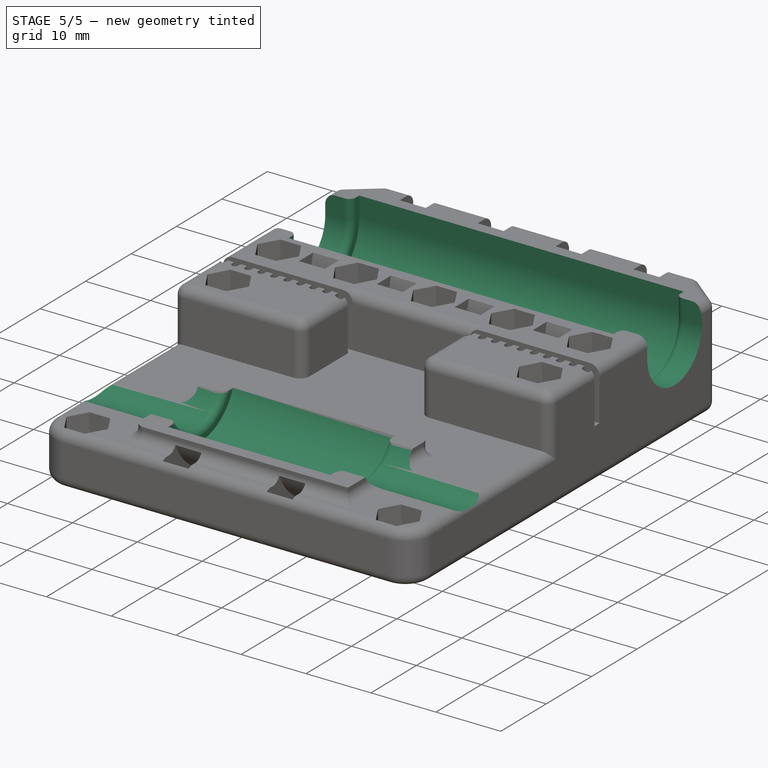
[diagram: stage 5 of 5 — iso view after this stage's code; geometry added in this stage tinted green]
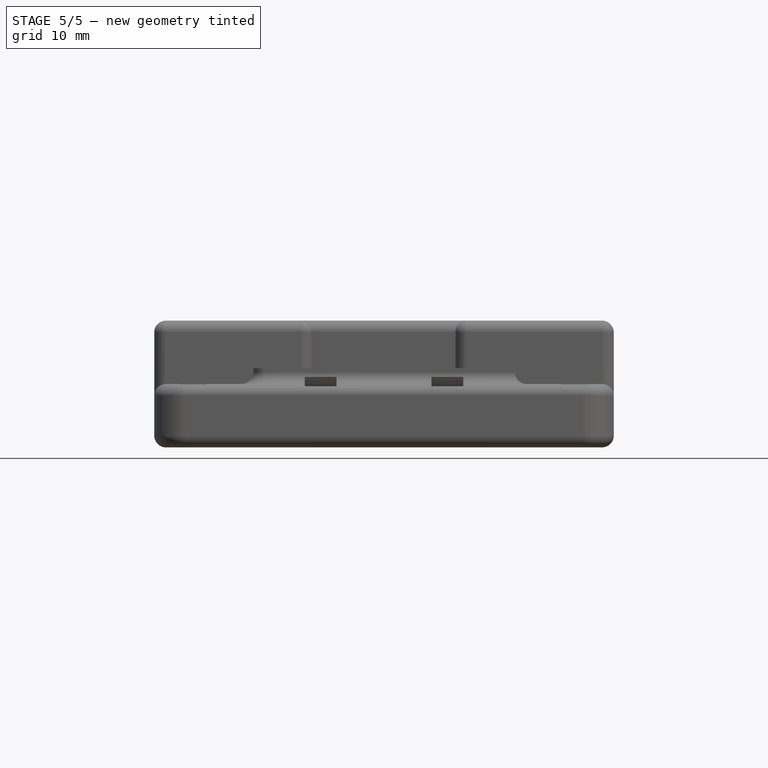
[diagram: stage 5 of 5 — front view after this stage's code; geometry added in this stage tinted green]
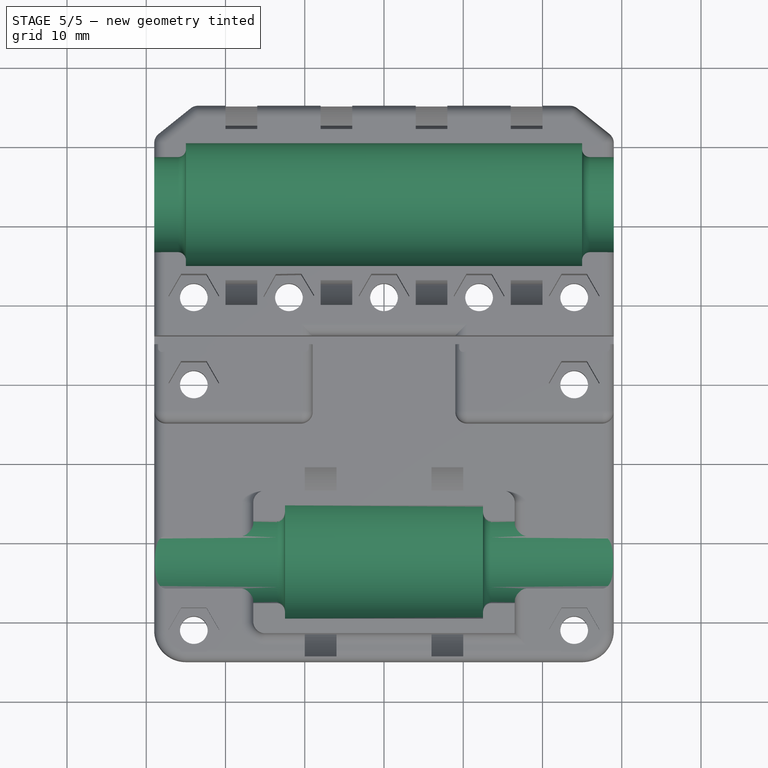
[diagram: stage 5 of 5 — top view after this stage's code; geometry added in this stage tinted green]
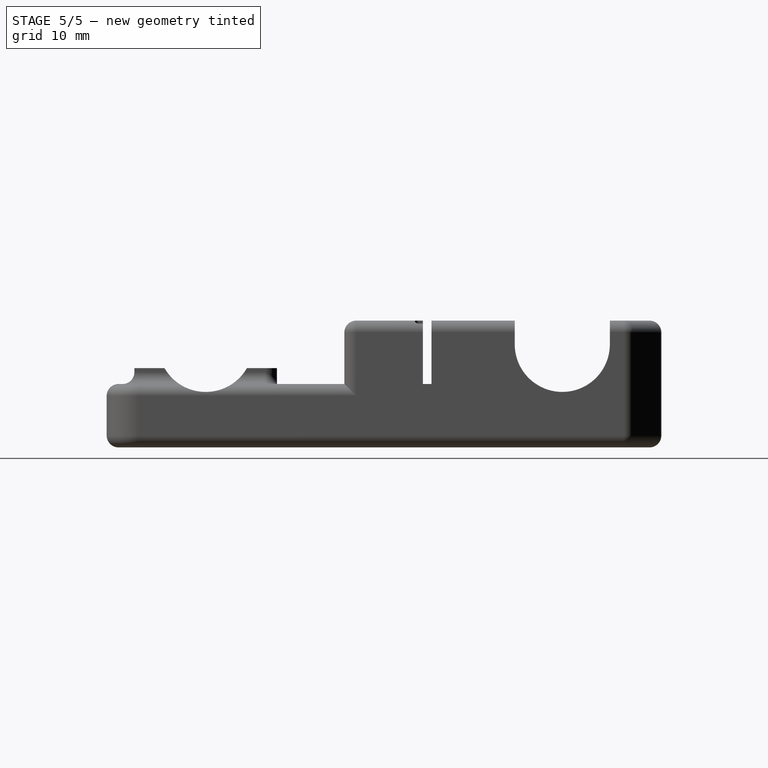
[diagram: stage 5 of 5 — right view after this stage's code; geometry added in this stage tinted green]
FEATURE [Sketcher::SketchObject] Sketch001
  ExternalGeometry = -> [Pad]
  Placement = pos=(0,0,8) rot=(0,0,1;0rad)
  Support = -> Pad [Face10]
  sketch-geometry (14):
    g0: LineSegment StartX=-29 StartY=-5 StartZ=0 EndX=-9 EndY=-5 EndZ=0
    g1: LineSegment StartX=-9 StartY=-5 StartZ=0 EndX=-9 EndY=6 EndZ=0
    g2: LineSegment StartX=-9 StartY=6 StartZ=0 EndX=9 EndY=6 EndZ=0
    g3: LineSegment StartX=9 StartY=6 StartZ=0 EndX=9 EndY=-5 EndZ=0
    g4: LineSegment StartX=9 StartY=-5 StartZ=0 EndX=29 EndY=-5 EndZ=0
    g5: LineSegment StartX=29 StartY=-5 StartZ=0 EndX=29 EndY=31 EndZ=0
    g6: LineSegment StartX=29 StartY=31 StartZ=0 EndX=24 EndY=35 EndZ=0
    g7: LineSegment StartX=24 StartY=35 StartZ=0 EndX=-24 EndY=35 EndZ=0
    g8: LineSegment StartX=-24 StartY=35 StartZ=0 EndX=-29 EndY=31 EndZ=0
    g9: LineSegment StartX=-29 StartY=31 StartZ=0 EndX=-29 EndY=-5 EndZ=0
    g10: LineSegment StartX=-16.5 StartY=-13.5 StartZ=0 EndX=16.5 EndY=-13.5 EndZ=0
    g11: LineSegment StartX=16.5 StartY=-13.5 StartZ=0 EndX=16.5 EndY=-31.5 EndZ=0
    g12: LineSegment StartX=16.5 StartY=-31.5 StartZ=0 EndX=-16.5 EndY=-31.5 EndZ=0
    g13: LineSegment StartX=-16.5 StartY=-31.5 StartZ=0 EndX=-16.5 EndY=-13.5 EndZ=0
  constraints (37):
    c: PointOnObject(g0,g-5)
    c: PointOnObject(g4,g-4)
    c: DistanceY(g-3,g0) = -40
    c: Horizontal(g0)
    c: Coincident(g0,g1)
    c: Vertical(g1)
    c: Coincident(g1,g2)
    c: Horizontal(g2)
    c: Coincident(g2,g3)
    c: Vertical(g3)
    c: Coincident(g3,g4)
    c: Coincident(g4,g5)
    c: Coincident(g5,g-4)
    c: Coincident(g5,g6)
    c: Coincident(g6,g-3)
    c: Coincident(g6,g7)
    c: Coincident(g7,g8)
    c: Coincident(g8,g9)
    c: Coincident(g9,g0)
    c: Coincident(g8,g-5)
    c: Coincident(g7,g-3)
    c: Horizontal(g4)
    c: DistanceX(g2) = 18
    c: DistanceY(g3) = -11
    c: Symmetric(g0,g3,g-2)
    c: Coincident(g10,g11)
    c: Coincident(g11,g12)
    c: Coincident(g12,g13)
    c: Coincident(g13,g10)
    c: Horizontal(g10)
    c: Horizontal(g12)
    c: Vertical(g11)
    c: Vertical(g13)
    c: Symmetric(g10,g10,g-2)
    c: DistanceX(g10,g10) = 33
    c: DistanceY(g10,g11) = -18
    c: DistanceY(g12,g-6) = -3.5
FEATURE [Sketcher::SketchObject] Sketch002
  Placement = pos=(0,0,0) rot=(0.57735,0.57735,0.57735;2.0944rad)
  sketch-geometry (5):
    g0: Circle [constr] CenterX=22.5 CenterY=13 CenterZ=0 NormalX=0 NormalY=0 NormalZ=1 Radius=7.75
    g1: LineSegment StartX=14.75 StartY=13 StartZ=0 EndX=14.75 EndY=33 EndZ=0
    g2: LineSegment StartX=14.75 StartY=33 StartZ=0 EndX=30.25 EndY=33 EndZ=0
    g3: LineSegment StartX=30.25 StartY=33 StartZ=0 EndX=30.25 EndY=13 EndZ=0
    g4: ArcOfCircle CenterX=22.5 CenterY=13 CenterZ=0 NormalX=0 NormalY=0 NormalZ=1 Radius=7.75 StartAngle=3.14159 EndAngle=6.28318
  constraints (15):
    c: DistanceX(g-1,g0) = 22.5
    c: Radius(g0) = 7.75
    c: DistanceY(g-1,g0) = 13
    c: Vertical(g1)
    c: Coincident(g1,g2)
    c: Horizontal(g2)
    c: Coincident(g2,g3)
    c: Vertical(g3)
    c: Tangent(g3,g0)
    c: Tangent(g1,g0)
    c: Tangent(g3,g0)
    c: DistanceY(g3) = -20
    c: Coincident(g4,g0)
    c: Coincident(g4,g1)
    c: Coincident(g4,g3)
FEATURE [PartDesign::Pad] Pad002  label="rodamiento_doble"
  Length = 50
  Length2 = 100
  Midplane = true
  Placement = pos=(0,0,0) rot=(0.57735,0.57735,0.57735;2.0944rad)
  Sketch = -> Sketch002
  Type = 0
FEATURE [Sketcher::SketchObject] Sketch003
  Placement = pos=(0,0,0) rot=(0.57735,0.57735,0.57735;2.0944rad)
  sketch-geometry (5):
    g0: Circle [constr] CenterX=-22.5 CenterY=13 CenterZ=0 NormalX=0 NormalY=0 NormalZ=1 Radius=7.75
    g1: LineSegment StartX=-30.25 StartY=13 StartZ=0 EndX=-30.25 EndY=33 EndZ=0
    g2: LineSegment StartX=-30.25 StartY=33 StartZ=0 EndX=-14.75 EndY=33 EndZ=0
    g3: LineSegment StartX=-14.75 StartY=33 StartZ=0 EndX=-14.75 EndY=13 EndZ=0
    g4: ArcOfCircle CenterX=-22.5 CenterY=13 CenterZ=0 NormalX=0 NormalY=0 NormalZ=1 Radius=7.75 StartAngle=3.14159 EndAngle=6.28319
  constraints (14):
    c: Radius(g0) = 7.75
    c: DistanceY(g-1,g0) = 13
    c: DistanceX(g-1,g0) = -22.5
    c: Vertical(g1)
    c: Coincident(g1,g2)
    c: Horizontal(g2)
    c: Coincident(g2,g3)
    c: Vertical(g3)
    c: Tangent(g1,g0)
    c: Tangent(g3,g0)
    c: DistanceY(g3) = -20
    c: Coincident(g4,g0)
    c: Coincident(g4,g1)
    c: Coincident(g4,g3)
FEATURE [PartDesign::Pad] Pad003  label="rodamiento_simple"
  Length = 25
  Length2 = 100
  Midplane = true
  Placement = pos=(0,0,0) rot=(0.57735,0.57735,0.57735;2.0944rad)
  Sketch = -> Sketch003
  Type = 0
FEATURE [Part::MultiFuse] Fusion  label="rodamientos"
  Shapes = -> [Pad002,Pad003]
FEATURE [Sketcher::SketchObject] Sketch004
  Placement = pos=(0,0,0) rot=(0.57735,0.57735,0.57735;2.0944rad)
  sketch-geometry (10):
    g0: Circle [constr] CenterX=22.5 CenterY=13 CenterZ=0 NormalX=0 NormalY=0 NormalZ=1 Radius=6
    g1: Circle [constr] CenterX=-22.5 CenterY=13 CenterZ=0 NormalX=0 NormalY=0 NormalZ=1 Radius=6
    g2: LineSegment StartX=-28.5 StartY=13 StartZ=0 EndX=-28.5 EndY=28 EndZ=0
    g3: LineSegment StartX=-28.5 StartY=28 StartZ=0 EndX=-16.5 EndY=28 EndZ=0
    g4: LineSegment StartX=-16.5 StartY=28 StartZ=0 EndX=-16.5 EndY=13 EndZ=0
    g5: ArcOfCircle CenterX=-22.5 CenterY=13 CenterZ=0 NormalX=0 NormalY=0 NormalZ=1 Radius=6 StartAngle=3.14159 EndAngle=6.28319
    g6: LineSegment StartX=16.5 StartY=13 StartZ=0 EndX=16.5 EndY=28 EndZ=0
    g7: LineSegment StartX=16.5 StartY=28 StartZ=0 EndX=28.5 EndY=28 EndZ=0
    g8: LineSegment StartX=28.5 StartY=28 StartZ=0 EndX=28.5 EndY=13 EndZ=0
    g9: ArcOfCircle CenterX=22.5 CenterY=13 CenterZ=0 NormalX=0 NormalY=0 NormalZ=1 Radius=6 StartAngle=3.14159 EndAngle=6.28319
  constraints (27):
    c: Symmetric(g0,g1,g-2)
    c: Equal(g1,g0)
    c: Radius(g1) = 6
    c: DistanceX(g1,g0) = 45
    c: DistanceY(g-1,g1) = 13
    c: Vertical(g2)
    c: Coincident(g2,g3)
    c: Horizontal(g3)
    c: Coincident(g3,g4)
    c: Vertical(g4)
    c: Tangent(g2,g1)
    c: Tangent(g4,g1)
    c: DistanceY(g4) = -15
    c: Coincident(g5,g1)
    c: Coincident(g5,g2)
    c: Coincident(g5,g4)
    c: Vertical(g6)
    c: Coincident(g6,g7)
    c: Horizontal(g7)
    c: Coincident(g7,g8)
    c: Vertical(g8)
    c: Tangent(g6,g0)
    c: Tangent(g8,g0)
    c: DistanceY(g6) = 15
    c: Coincident(g9,g0)
    c: Coincident(g9,g6)
    c: Coincident(g9,g8)
FEATURE [PartDesign::Pad] Pad004  label="hueco_barras"
  Length = 100
  Length2 = 100
  Midplane = true
  Placement = pos=(0,0,0) rot=(0.57735,0.57735,0.57735;2.0944rad)
  Sketch = -> Sketch004
  Type = 0
FEATURE [Part::MultiFuse] Fusion007  label="restas"
  Shapes = -> [Fusion,Pad004,Cut002,Fusion005,Pad005,Pad006,Pad007,Box002]
FEATURE [Part::Cut] Cut  label="redondeo_con_huecos"
  Base = -> Fillet
  Tool = -> Fusion007
FEATURE [PartDesign::Fillet] Fillet001
  Base = -> Cut [Edge338,Edge606,Edge187,Edge85,Edge603,Edge589,Edge335,Edge339]
  Radius = 1
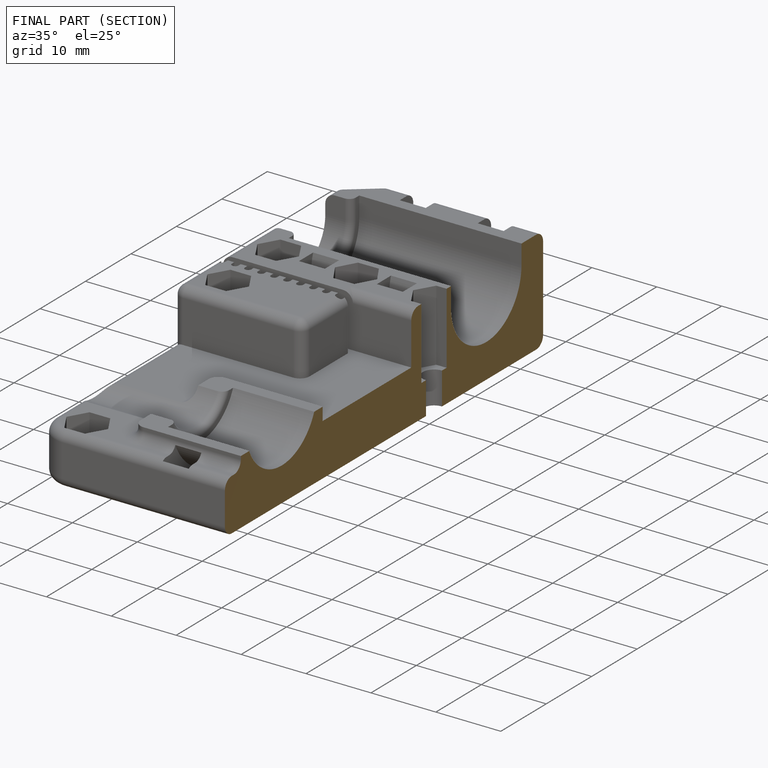
[diagram: finished part — half-section view (interior)]
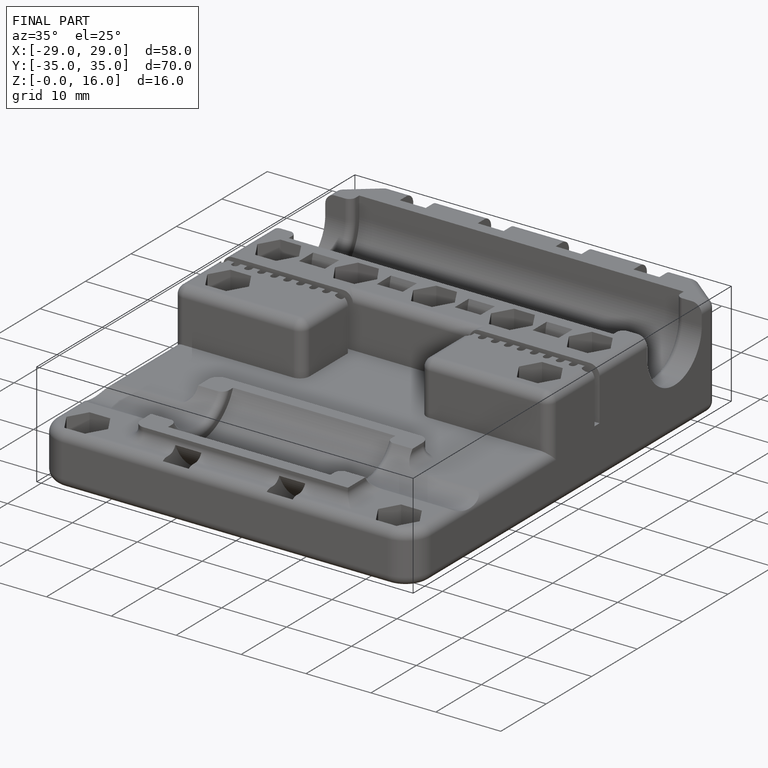
[diagram: finished part — iso view with bounding-box wireframe]
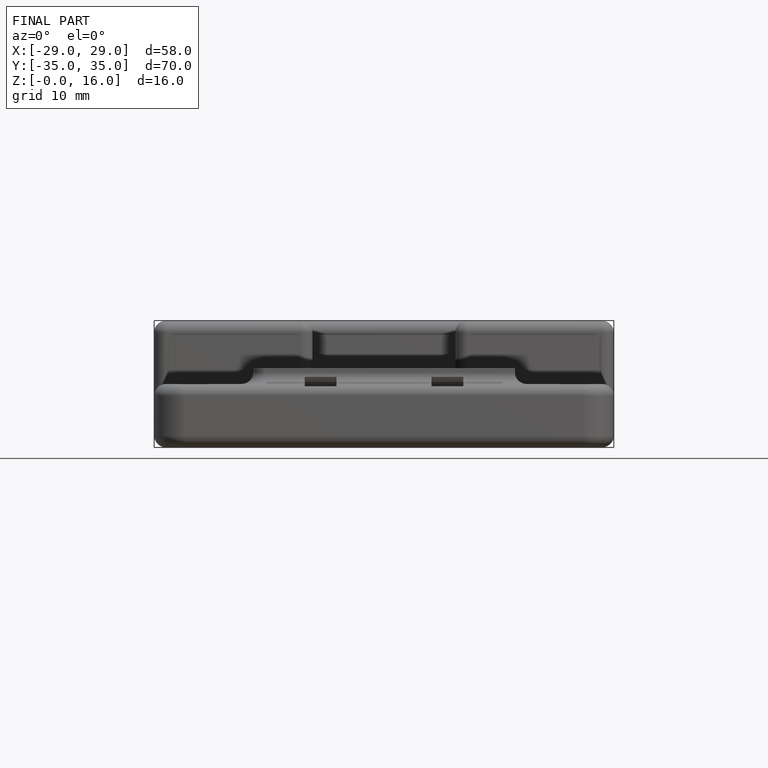
[diagram: finished part — front view with bounding-box wireframe]
